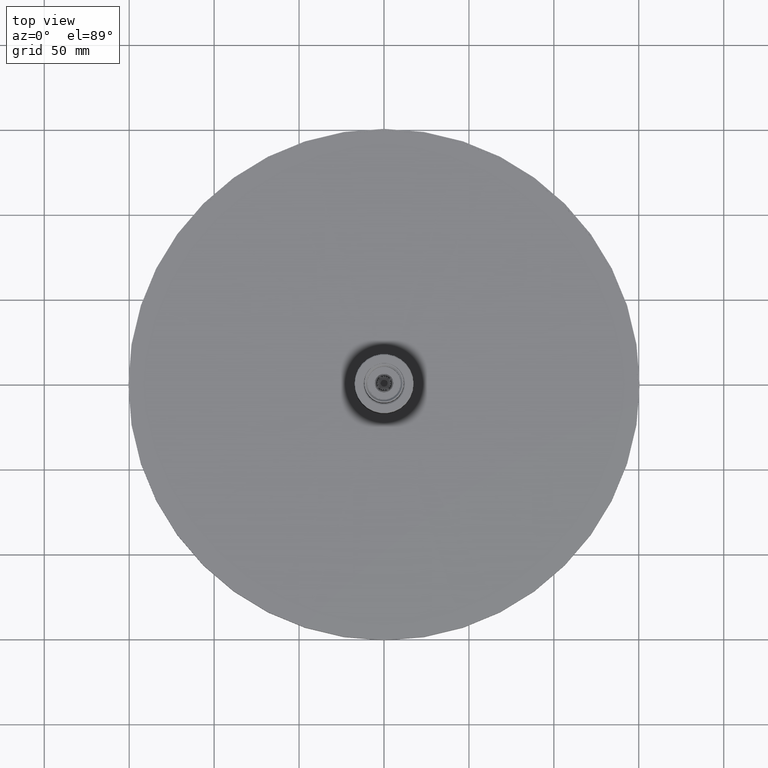
[diagram: clean part render]
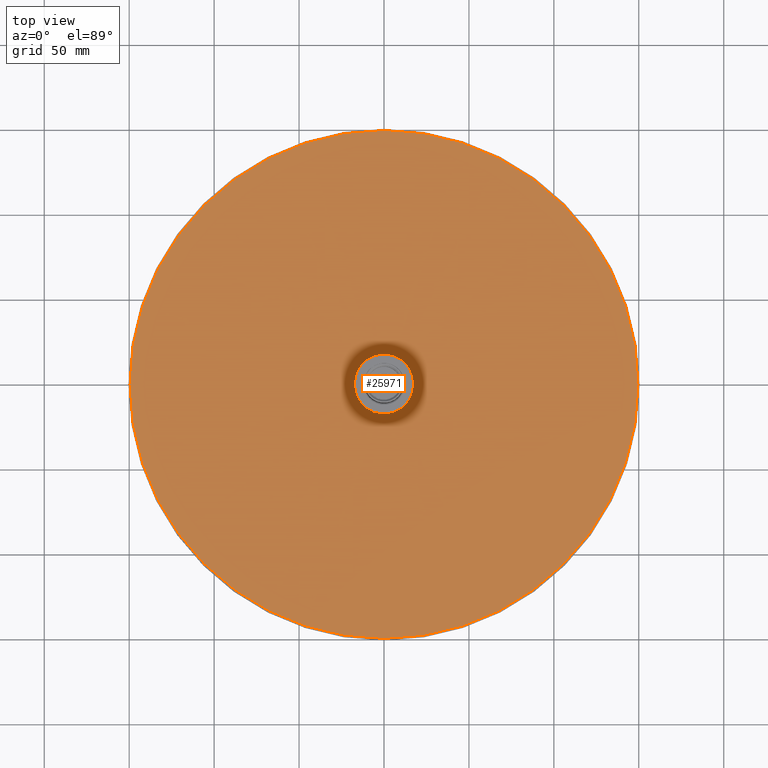
[diagram: same view with one face highlighted and labeled with its STEP entity id]
A machine part, top view. The second image highlights one B-rep face of the part: STEP entity #25971.
In plain terms, the highlighted planar face has unit normal (0, 0, 1).
Its self-contained STEP definition (entity closure, byte-faithful):
#25902=CARTESIAN_POINT('',(16.5,0.,11.));
#25903=VERTEX_POINT('Vertex970',#25902);
#25904=CARTESIAN_POINT('',(-1.4432899320127E-015,2.94209101525666E-015,11.));
#25905=DIRECTION('',(-0.,-0.,-1.));
#25906=DIRECTION('',(1.,-1.78308546379192E-016,1.07657990266682E-016));
#25907=AXIS2_PLACEMENT_3D('',#25904,#25905,#25906);
#25908=CIRCLE('',#25907,16.5);
#25909=EDGE_CURVE('Edge970',#25903,#25903,#25908,.T.);
#25930=CARTESIAN_POINT('',(149.5,0.,11.));
#25931=VERTEX_POINT('Vertex972',#25930);
#25932=CARTESIAN_POINT('',(1.77635683940025E-015,-1.11022302462516E-014,11.));
#25933=DIRECTION('',(0.,-0.,1.));
#25934=DIRECTION('',(1.,7.42624096739235E-017,1.18819855478278E-017));
#25935=AXIS2_PLACEMENT_3D('',#25932,#25933,#25934);
#25936=CIRCLE('',#25935,149.5);
#25937=EDGE_CURVE('Edge972',#25931,#25931,#25936,.T.);
#25960=ORIENTED_EDGE('Edgeuse1945',*,*,#25937,.T.);
#25961=EDGE_LOOP('',(#25960));
#25962=FACE_OUTER_BOUND('',#25961,.T.);
#25963=ORIENTED_EDGE('Edgeuse1944',*,*,#25909,.T.);
#25964=EDGE_LOOP('',(#25963));
#25965=FACE_BOUND('',#25964,.T.);
#25966=CARTESIAN_POINT('',(0.,0.,11.));
#25967=DIRECTION('',(0.,0.,1.));
#25968=DIRECTION('',(-1.,0.,0.));
#25969=AXIS2_PLACEMENT_3D('',#25966,#25967,#25968);
#25970=PLANE('',#25969);
#25971=ADVANCED_FACE('Face770',(#25962,#25965),#25970,.T.);